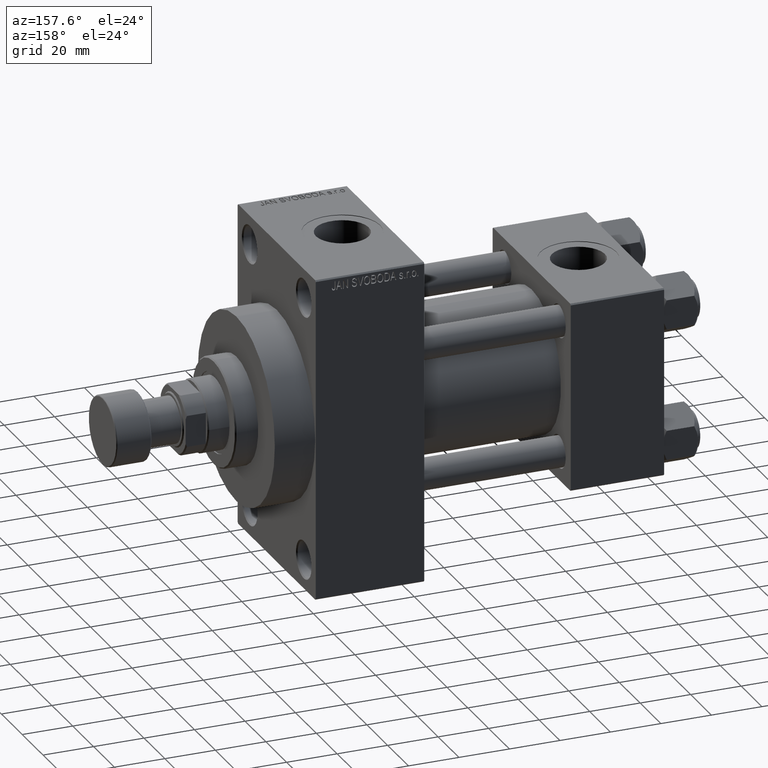
[diagram: clean part render]
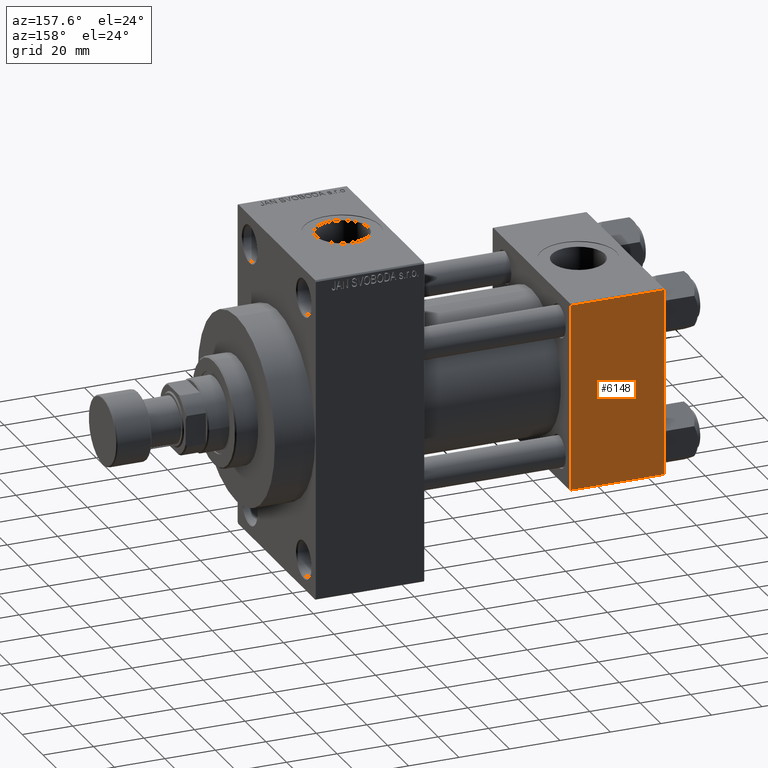
[diagram: same view with one face highlighted and labeled with its STEP entity id]
A machine part, auxiliary view. The second image highlights one B-rep face of the part: STEP entity #6148.
In plain terms, the highlighted planar face has unit normal (0, 1, 0).
Its self-contained STEP definition (entity closure, byte-faithful):
#6148 = ADVANCED_FACE ( 'NONE', ( #8554 ), #42272, .T. ) ;
#7600 = LINE ( 'NONE', #19368, #29484 ) ;
#8554 = FACE_OUTER_BOUND ( 'NONE', #15362, .T. ) ;
#10417 = CARTESIAN_POINT ( 'NONE',  ( 37.00000000000000000, 37.49999999999999289, 37.00000000000000000 ) ) ;
#10668 = CARTESIAN_POINT ( 'NONE',  ( 0.000000000000000000, 37.49999999999999289, 37.00000000000000000 ) ) ;
#11674 = VERTEX_POINT ( 'NONE', #41215 ) ;
#14333 = AXIS2_PLACEMENT_3D ( 'NONE', #23217, #20090, #37939 ) ;
#15048 = DIRECTION ( 'NONE',  ( 0.000000000000000000, 0.000000000000000000, -1.000000000000000000 ) ) ;
#15362 = EDGE_LOOP ( 'NONE', ( #46290, #43376, #35432, #15396 ) ) ;
#15396 = ORIENTED_EDGE ( 'NONE', *, *, #31106, .T. ) ;
#15639 = DIRECTION ( 'NONE',  ( -1.000000000000000000, 0.000000000000000000, 0.000000000000000000 ) ) ;
#16726 = EDGE_CURVE ( 'NONE', #43493, #35532, #30559, .T. ) ;
#17179 = VECTOR ( 'NONE', #33353, 1000.000000000000000 ) ;
#19368 = CARTESIAN_POINT ( 'NONE',  ( 0.000000000000000000, 37.49999999999999289, 37.50000000000000000 ) ) ;
#20090 = DIRECTION ( 'NONE',  ( -0.000000000000000000, 1.000000000000000000, 0.000000000000000000 ) ) ;
#20953 = VECTOR ( 'NONE', #25820, 1000.000000000000000 ) ;
#23217 = CARTESIAN_POINT ( 'NONE',  ( 37.00000000000000000, 37.49999999999999289, 37.50000000000000000 ) ) ;
#23313 = CARTESIAN_POINT ( 'NONE',  ( 37.00000000000000000, 37.49999999999999289, -36.99999999999998579 ) ) ;
#23867 = LINE ( 'NONE', #33820, #17179 ) ;
#25330 = LINE ( 'NONE', #10417, #20953 ) ;
#25820 = DIRECTION ( 'NONE',  ( 1.000000000000000000, 0.000000000000000000, 0.000000000000000000 ) ) ;
#29484 = VECTOR ( 'NONE', #15048, 1000.000000000000000 ) ;
#29944 = VECTOR ( 'NONE', #15639, 1000.000000000000000 ) ;
#30015 = CARTESIAN_POINT ( 'NONE',  ( 0.000000000000000000, 37.49999999999999289, -36.99999999999998579 ) ) ;
#30559 = LINE ( 'NONE', #23313, #29944 ) ;
#31106 = EDGE_CURVE ( 'NONE', #40064, #11674, #25330, .T. ) ;
#33021 = EDGE_CURVE ( 'NONE', #11674, #43493, #23867, .T. ) ;
#33353 = DIRECTION ( 'NONE',  ( 0.000000000000000000, 0.000000000000000000, -1.000000000000000000 ) ) ;
#33820 = CARTESIAN_POINT ( 'NONE',  ( 37.00000000000000000, 37.49999999999999289, 37.50000000000000000 ) ) ;
#35432 = ORIENTED_EDGE ( 'NONE', *, *, #36581, .F. ) ;
#35532 = VERTEX_POINT ( 'NONE', #30015 ) ;
#36581 = EDGE_CURVE ( 'NONE', #40064, #35532, #7600, .T. ) ;
#37939 = DIRECTION ( 'NONE',  ( 0.000000000000000000, -0.000000000000000000, 1.000000000000000000 ) ) ;
#40064 = VERTEX_POINT ( 'NONE', #10668 ) ;
#40214 = CARTESIAN_POINT ( 'NONE',  ( 37.00000000000000000, 37.49999999999999289, -36.99999999999998579 ) ) ;
#41215 = CARTESIAN_POINT ( 'NONE',  ( 37.00000000000000000, 37.49999999999999289, 37.00000000000000000 ) ) ;
#42272 = PLANE ( 'NONE',  #14333 ) ;
#43376 = ORIENTED_EDGE ( 'NONE', *, *, #16726, .T. ) ;
#43493 = VERTEX_POINT ( 'NONE', #40214 ) ;
#46290 = ORIENTED_EDGE ( 'NONE', *, *, #33021, .T. ) ;